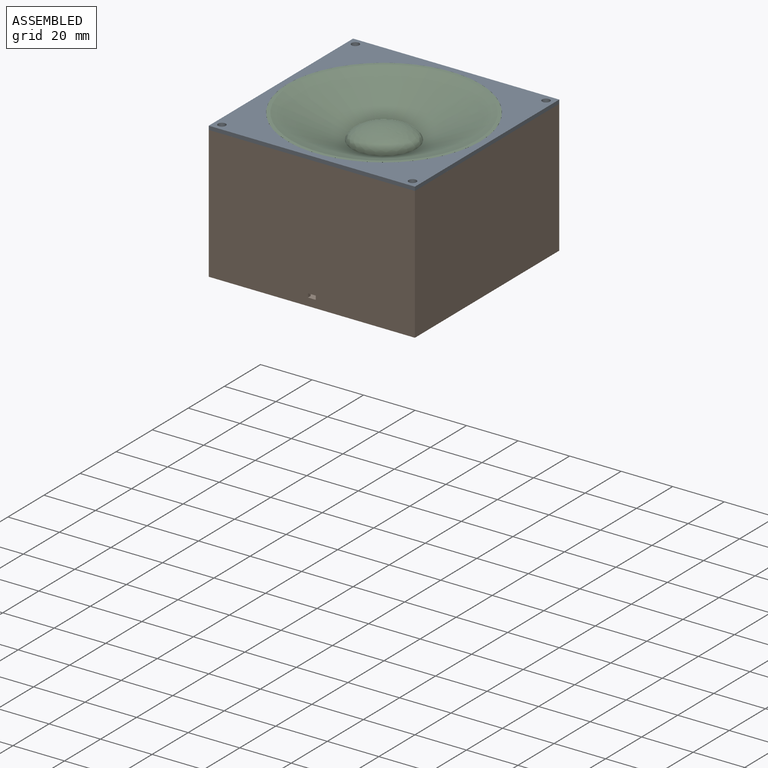
[diagram: assembled view]
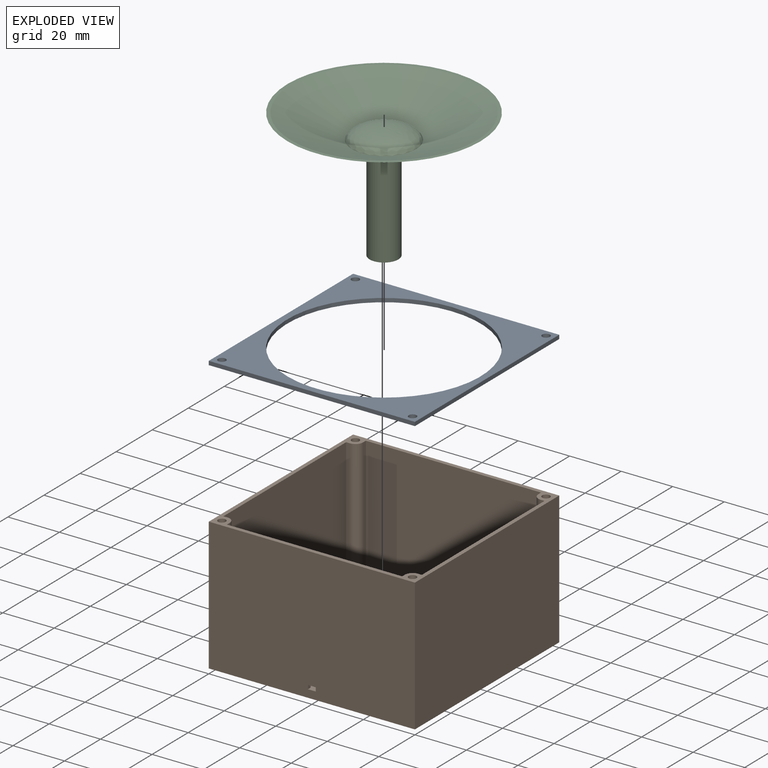
[diagram: exploded view]
GUIDED TOUR — MATED ASSEMBLY (Onshape document e8bc2521c4c116e8563849fe, AutoMate assembly e8bc2521c4c116e8563849fe_7b32bd0b9675d1406d4429d3_b6977e95659eb15da673e906_default)

This assembly has 3 components, labeled P0..P2 below (a component is one placed occurrence of a part; the same part can appear more than once), held together by 3 mates. A mate is a constraint between two components; its type names the relative motion it leaves free:
  FASTENED — locks the two components together rigidly (no relative motion),
  PLANAR — leaves sliding in the plane through the listed point (normal = the listed direction) and rotation about that normal free,
  SLIDER — leaves translation along the listed axis free.
Axis/direction vectors are unit vectors and 'through' points are millimeter coordinates, both in the assembly's world frame.

MATES
  1. FASTENED "Fastened 1": P0 <-> P1, direction (0.000, 0.000, -1.000) through (0.00, 0.00, 51.50) mm
  2. SLIDER "Slider 1": P2 <-> P0, axis (0.000, 0.000, 1.000) through (0.00, 0.00, 53.00) mm
  3. PLANAR "Planar 1": P2 <-> P0, direction (0.000, 0.000, 1.000) through (0.00, 0.00, 53.00) mm

ASSEMBLY ORDER
  1. P2 — the base component [order verified]
  2. P0 [order verified]
  3. P1 [order verified]
Order-tag legend:
  [order verified] — this step's position reverses a verified removal order: the component was checked to insert without passing through the ones already placed.

Of the 3 components, 1 carries the full construction recipe — the FeatureScript program that regenerates the part's solid from scratch; the rest are supplied as boundary geometry only.
Each toured component is shown spotlighted twice — in the assembled view, then in the exploded view, where a leader line traces a displaced component back to its assembled socket (saturated green if recipe-attached, orange if geometry-only; every other component desaturated gray) — followed by its recipe or geometry summary and the mates that hold it.
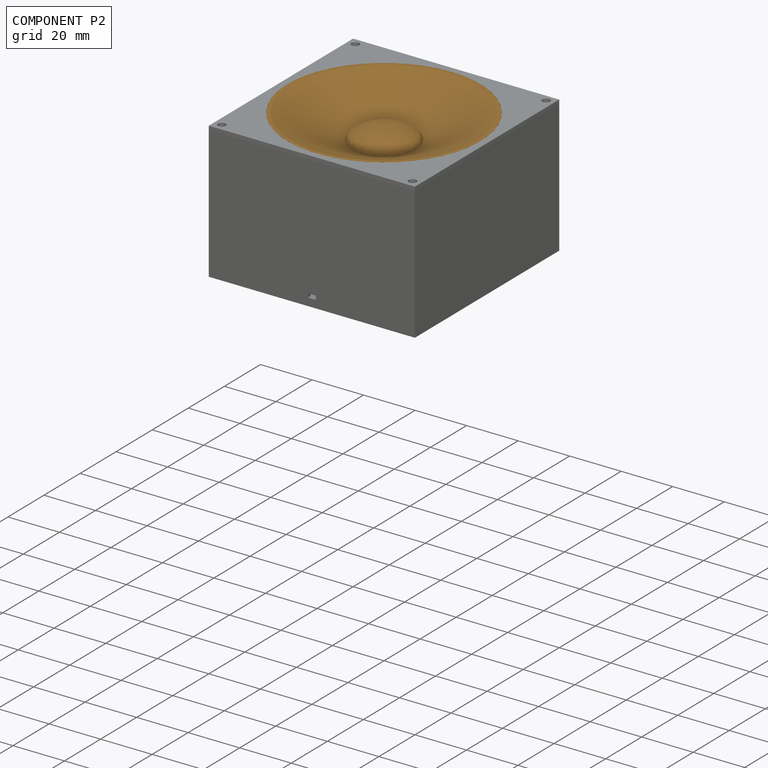
[diagram: component P2 — assembled]
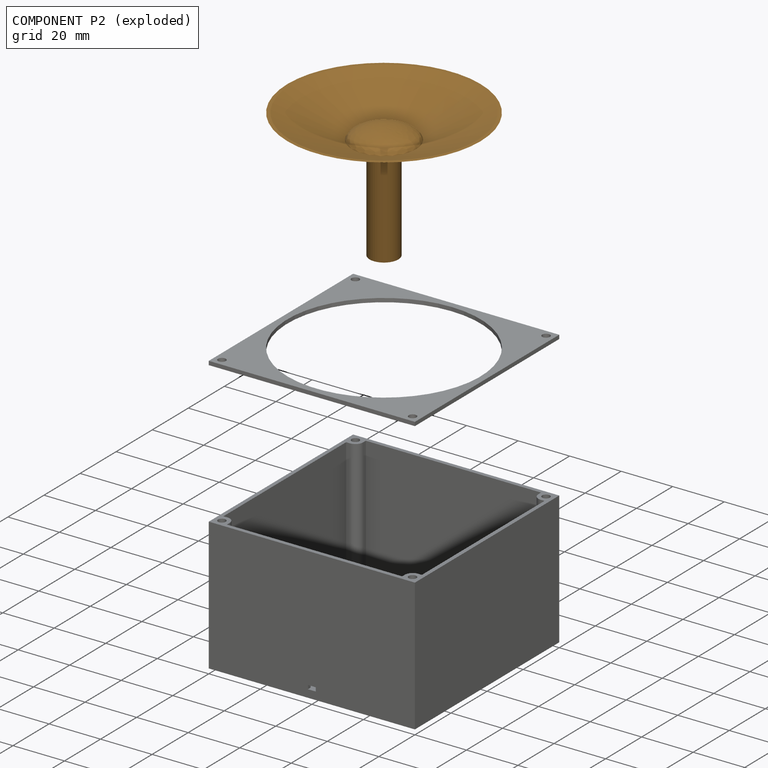
[diagram: component P2 — exploded]
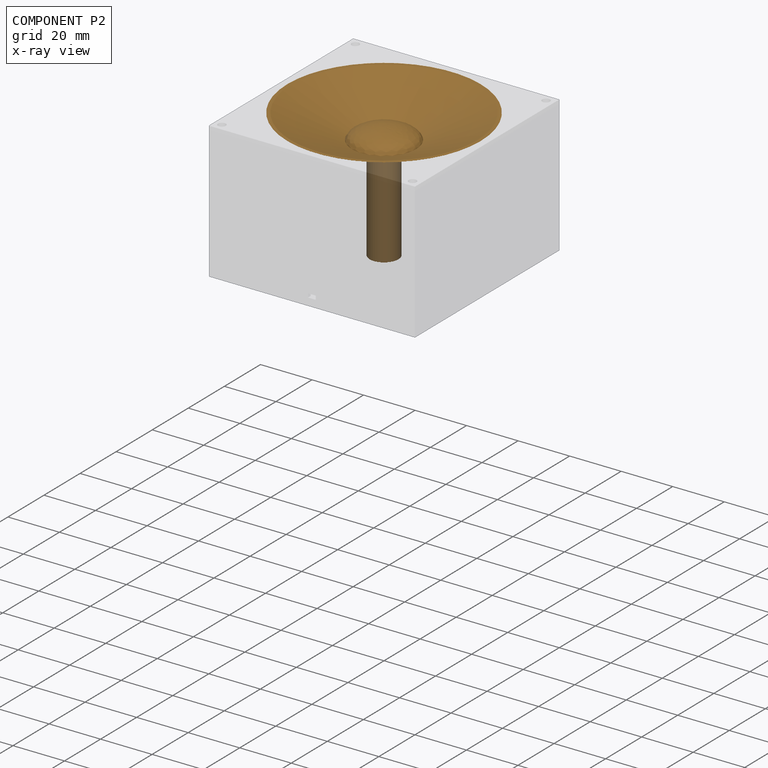
[diagram: component P2 — x-ray view]
COMPONENT P2 — geometry summary (no construction recipe available for this part):
  bounding box: 75.0 x 75.0 x 50.0 mm
  B-rep topology: 1 solid, 11 faces, 40 edges
  volume: 3078 mm^3 (1% of its bounding box)
  symmetry: revolution-symmetric about the z axis through its bounding-box center; mirror-symmetric across its x mid-plane, y mid-plane
Held by: SLIDER mate "Slider 1" to P0; PLANAR mate "Planar 1" to P0.
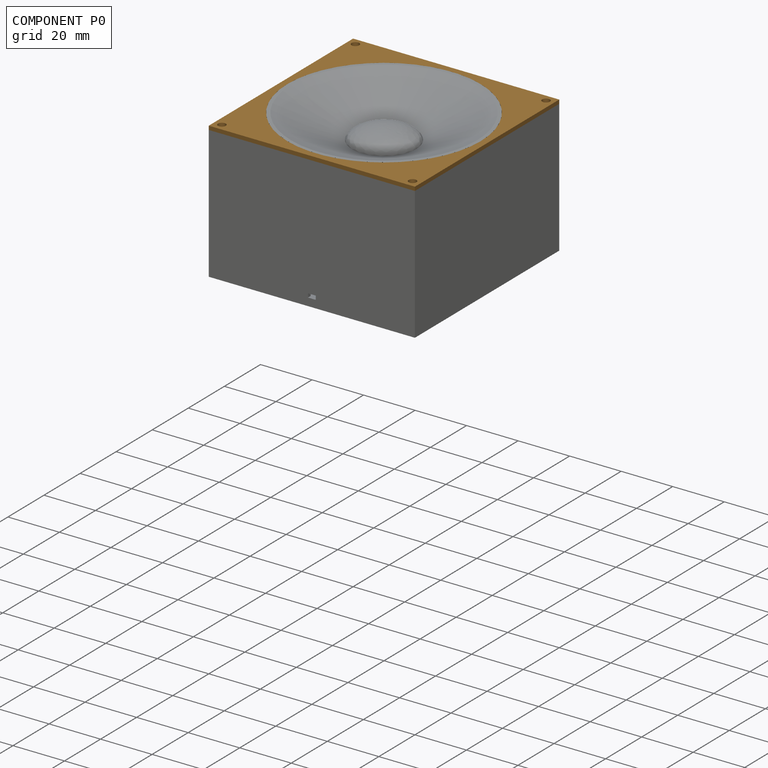
[diagram: component P0 — assembled]
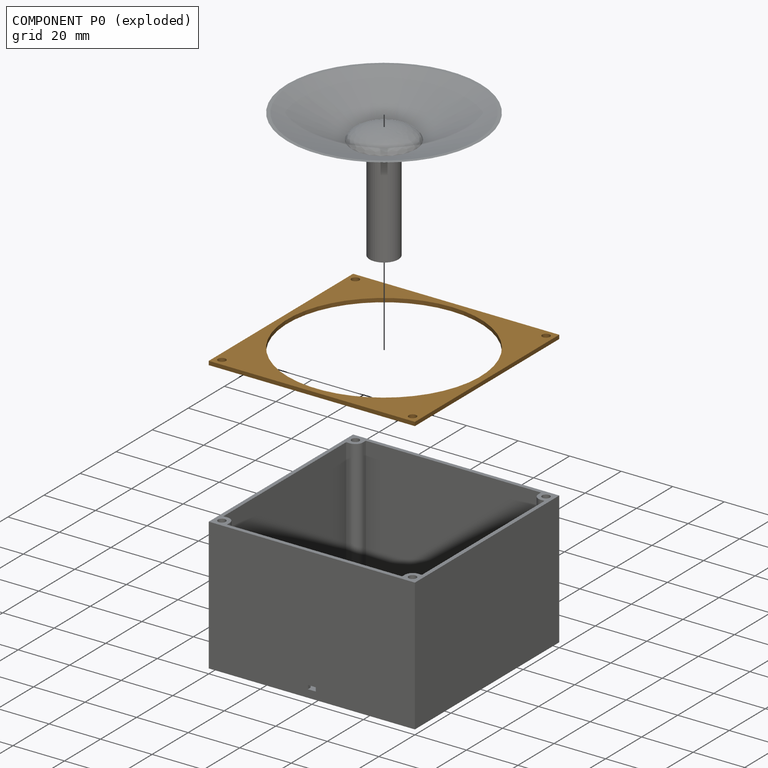
[diagram: component P0 — exploded]
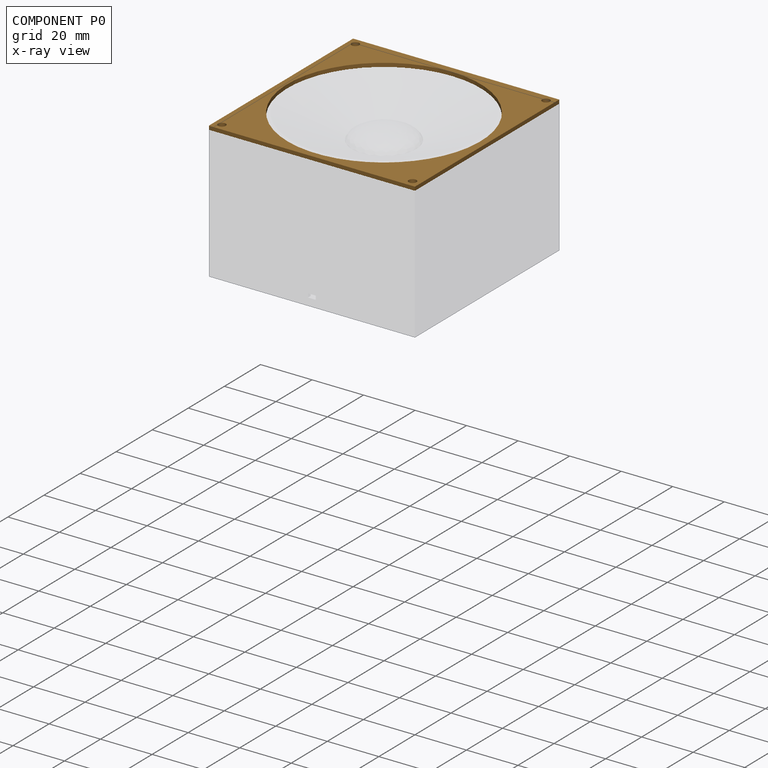
[diagram: component P0 — x-ray view]
COMPONENT P0 — geometry summary (no construction recipe available for this part):
  bounding box: 80.0 x 80.0 x 1.5 mm
  B-rep topology: 1 solid, 11 faces, 54 edges
  volume: 2931 mm^3 (31% of its bounding box)
  symmetry: 2-fold rotationally symmetric about the x axis; 2-fold rotationally symmetric about the y axis; 4-fold rotationally symmetric about the z axis; mirror-symmetric across its x mid-plane, y mid-plane, z mid-plane
Held by: FASTENED mate "Fastened 1" to P1; SLIDER mate "Slider 1" to P2; PLANAR mate "Planar 1" to P2.
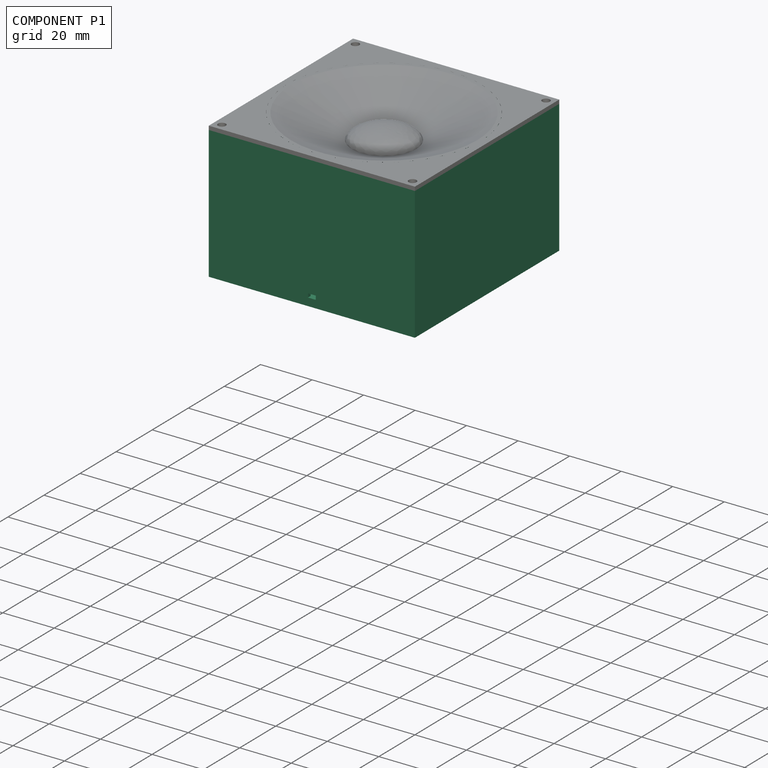
[diagram: component P1 — assembled]
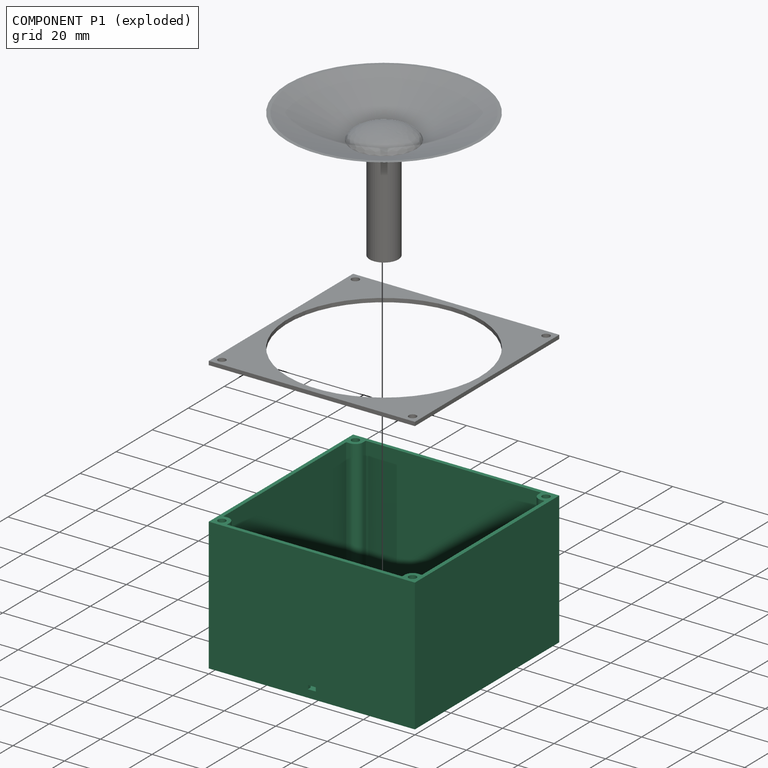
[diagram: component P1 — exploded]
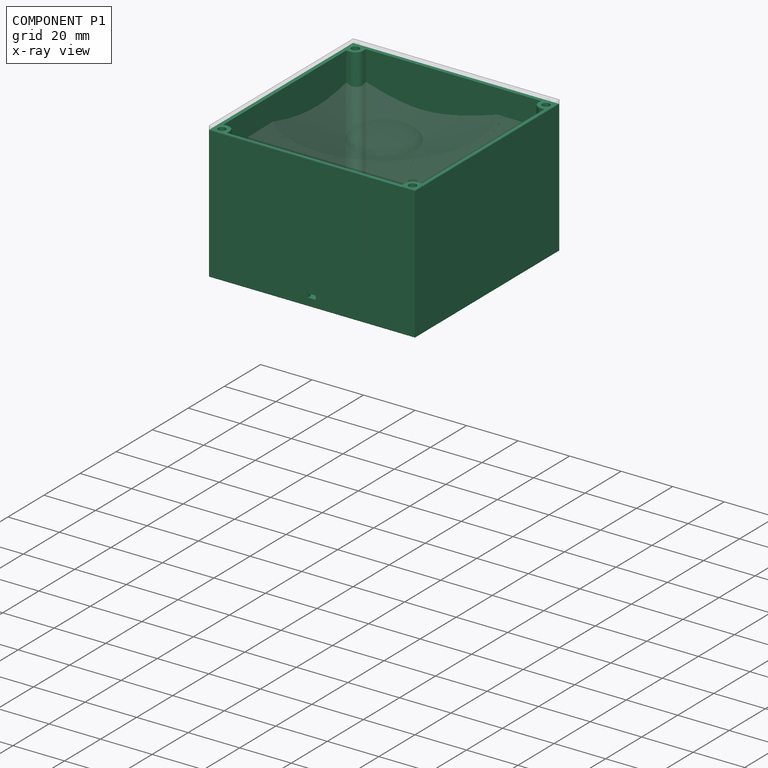
[diagram: component P1 — x-ray view]
COMPONENT P1 — recipe-attached (CADFS 00588034, mesh-verified: the recipe's output STEP matches this component's geometry to below the mesh-comparison resolution (tessellation chordal tolerance ~0.186 mm)).
Held by: FASTENED mate "Fastened 1" to P0.
Construction recipe (FeatureScript — the CAD program that rebuilds this solid; sketch coordinates are in the units given by the * unit suffixes, e.g. mm):

FeatureScript 1511;
import(path : "onshape/std/geometry.fs", version : "1511.0");
import(path : "onshape/std/common.fs", version : "1511.0");
const mm = millimeter;
const VERTEX = EntityType.VERTEX;
const EDGE = EntityType.EDGE;
const FACE = EntityType.FACE;
const BODY = EntityType.BODY;
function v(x, y){return vector(x, y);}
function OD(order){return orderDisambiguation(order);}
function OSD(set){return originalSetDisambiguation(set);}
function TD(topology){return topologyDisambiguation(topology);}
function TDD(query){return trueDependencyDisambiguation(query);}
function sQuery(a, b, c) {return sketchEntityQuery(a, b, c);}

annotation { "Feature Type Name" : "Feature", "Feature Type Description" : "" }
export const myFeature = defineFeature(function(context is Context, id is Id, definition is map)
    precondition{}
    {
        {
            var Q0;
            Q0=qCreatedBy(makeId("Top.planeOp"),FACE);
            var sketch = newSketch(context, id + "F0", { "sketchPlane" : qUnion([Q0])});
            skLineSegment(sketch, "E0.bottom", {"start": v(40, 40) * mm, "end": v(-40, 40) * mm});
            skLineSegment(sketch, "E0.top", {"start": v(40, -40) * mm, "end": v(-40, -40) * mm});
            skLineSegment(sketch, "E0.left", {"start": v(40, 40) * mm, "end": v(40, -40) * mm});
            skLineSegment(sketch, "E0.right", {"start": v(-40, 40) * mm, "end": v(-40, -40) * mm});
            skPoint(sketch, "E0.middle", {"position": v(0, 0) * mm});
            skSolve(sketch);
        }
        {
            var Q0;
            Q0=makeQuery(id+"F0.imprint","IMPRINT",FACE,{"disambiguationData":[TD([[makeQuery(id+"F0.imprint","IMPRINT",EDGE,{"derivedFrom":sQuery(id+"F0.wireOp",EDGE,"E0.bottom")}),1.0]])]});
            extrude(context, id + "F1", {"entities" : qUnion([Q0]), "depth" : 51.5 * mm, "offsetDistance" : 25 * mm});
        }
        {
            var Q0;
            Q0=makeQuery(id+"F1.opExtrude","CAP_FACE",FACE,{"disambiguationData":[OSD([sQuery(id+"F0.wireOp",EDGE,"E0.bottom"),sQuery(id+"F0.wireOp",EDGE,"E0.top"),sQuery(id+"F0.wireOp",EDGE,"E0.left"),sQuery(id+"F0.wireOp",EDGE,"E0.right")])],"isStart":false});
            shell(context, id + "F2", {"entities" : qUnion([Q0]), "thickness" : 1.5 * mm});
        }
        {
            var Q0;
            Q0=makeQuery(id+"F1.opExtrude","CAP_FACE",FACE,{"disambiguationData":[OSD([sQuery(id+"F0.wireOp",EDGE,"E0.bottom"),sQuery(id+"F0.wireOp",EDGE,"E0.top"),sQuery(id+"F0.wireOp",EDGE,"E0.left"),sQuery(id+"F0.wireOp",EDGE,"E0.right")])],"isStart":false});
            var sketch = newSketch(context, id + "F3", { "sketchPlane" : qUnion([Q0])});
            skCircle(sketch, "E1", {"center": v(-37, 37) * mm, "radius": 1.5 * mm});
            skArc(sketch, "E2.0", {"start": v(-37, 34) * mm, "mid": v(-34.88, 34.88) * mm, "end": v(-34, 37) * mm});
            skLineSegment(sketch, "E3.0", {"start": v(-38.5, 38.5) * mm, "end": v(-38.5, -38.5) * mm});
            skLineSegment(sketch, "E4.0", {"start": v(38.5, 38.5) * mm, "end": v(-38.5, 38.5) * mm});
            skLineSegment(sketch, "E5", {"start": v(-37, 34) * mm, "end": v(-38.5, 34) * mm});
            skLineSegment(sketch, "E6", {"start": v(-34, 37) * mm, "end": v(-34, 38.5) * mm});
            skLineSegment(sketch, "E7.0", {"start": v(38.5, 38.5) * mm, "end": v(38.5, -38.5) * mm});
            skLineSegment(sketch, "E8.0", {"start": v(38.5, -38.5) * mm, "end": v(-38.5, -38.5) * mm});
            skCircle(sketch, "E9", {"center": v(-37, -37) * mm, "radius": 1.5 * mm});
            skCircle(sketch, "E10", {"center": v(37, -37) * mm, "radius": 1.5 * mm});
            skCircle(sketch, "E11", {"center": v(37, 37) * mm, "radius": 1.5 * mm});
            skArc(sketch, "E12.0", {"start": v(34, 37) * mm, "mid": v(34.88, 34.88) * mm, "end": v(37, 34) * mm});
            skArc(sketch, "E13", {"start": v(-34, -37) * mm, "mid": v(-34.88, -34.88) * mm, "end": v(-37, -34) * mm});
            skArc(sketch, "E14", {"start": v(37, -34) * mm, "mid": v(34.88, -34.88) * mm, "end": v(34, -37) * mm});
            skLineSegment(sketch, "E15", {"start": v(37, 34) * mm, "end": v(38.5, 34) * mm});
            skLineSegment(sketch, "E16", {"start": v(34, 37) * mm, "end": v(34, 38.5) * mm});
            skLineSegment(sketch, "E17", {"start": v(37, -34) * mm, "end": v(38.5, -34) * mm});
            skLineSegment(sketch, "E18", {"start": v(34, -37) * mm, "end": v(34, -38.5) * mm});
            skLineSegment(sketch, "E19", {"start": v(-34, -37) * mm, "end": v(-34, -38.5) * mm});
            skLineSegment(sketch, "E20", {"start": v(-37, -34) * mm, "end": v(-38.5, -34) * mm});
            skSolve(sketch);
        }
        {
            var Q0;
            Q0=makeQuery(id+"F3.imprint","IMPRINT",FACE,{"disambiguationData":[TD([[makeQuery(id+"F3.imprint","IMPRINT",EDGE,{"derivedFrom":sQuery(id+"F3.wireOp",EDGE,"E2.0")}),1.0]])]});
            var Q1;
            {var subQ0=sQuery(id+"F3.wireOp",EDGE,"E3.0");var subQ1=sQuery(id+"F3.wireOp",EDGE,"E1");var subQ2=makeQuery(id+"F3.imprint","INTERSECT",VERTEX,{"derivedFrom":[subQ1,subQ0]});Q1=makeQuery(id+"F3.imprint","IMPRINT",FACE,{"disambiguationData":[TD([[makeQuery(id+"F3.imprint","IMPRINT",EDGE,{"disambiguationData":[TD([[subQ2,1.0]])],"derivedFrom":subQ1}),-1.0]])]});}
            var Q2;
            Q2=makeQuery(id+"F3.imprint","IMPRINT",FACE,{"disambiguationData":[TD([[makeQuery(id+"F3.imprint","IMPRINT",EDGE,{"derivedFrom":sQuery(id+"F3.wireOp",EDGE,"E13")}),1.0]])]});
            var Q3;
            {var subQ0=sQuery(id+"F3.wireOp",EDGE,"E8.0");var subQ1=sQuery(id+"F3.wireOp",EDGE,"E3.0");var subQ2=makeQuery(id+"F3.imprint","INTERSECT",VERTEX,{"derivedFrom":[subQ1,subQ0]});Q3=makeQuery(id+"F3.imprint","IMPRINT",FACE,{"disambiguationData":[TD([[makeQuery(id+"F3.imprint","IMPRINT",EDGE,{"disambiguationData":[TD([[subQ2,1.0]])],"derivedFrom":subQ1}),1.0]])]});}
            var Q4;
            Q4=makeQuery(id+"F3.imprint","IMPRINT",FACE,{"disambiguationData":[TD([[makeQuery(id+"F3.imprint","IMPRINT",EDGE,{"derivedFrom":sQuery(id+"F3.wireOp",EDGE,"E14")}),1.0]])]});
            var Q5;
            {var subQ0=sQuery(id+"F3.wireOp",EDGE,"E8.0");var subQ1=sQuery(id+"F3.wireOp",EDGE,"E7.0");var subQ2=makeQuery(id+"F3.imprint","INTERSECT",VERTEX,{"derivedFrom":[subQ1,subQ0]});Q5=makeQuery(id+"F3.imprint","IMPRINT",FACE,{"disambiguationData":[TD([[makeQuery(id+"F3.imprint","IMPRINT",EDGE,{"disambiguationData":[TD([[subQ2,1.0]])],"derivedFrom":subQ1}),-1.0]])]});}
            var Q6;
            Q6=makeQuery(id+"F3.imprint","IMPRINT",FACE,{"disambiguationData":[TD([[makeQuery(id+"F3.imprint","IMPRINT",EDGE,{"derivedFrom":sQuery(id+"F3.wireOp",EDGE,"E12.0")}),1.0]])]});
            var Q7;
            {var subQ0=sQuery(id+"F3.wireOp",EDGE,"E7.0");var subQ1=sQuery(id+"F3.wireOp",EDGE,"E4.0");var subQ2=makeQuery(id+"F3.imprint","INTERSECT",VERTEX,{"derivedFrom":[subQ1,subQ0]});Q7=makeQuery(id+"F3.imprint","IMPRINT",FACE,{"disambiguationData":[TD([[makeQuery(id+"F3.imprint","IMPRINT",EDGE,{"disambiguationData":[TD([[subQ2,-1.0]])],"derivedFrom":subQ1}),1.0]])]});}
            extrude(context, id + "F4", {"entities" : qUnion([Q0, Q1, Q2, Q3, Q4, Q5, Q6, Q7]), "operationType" : NewBodyOperationType.ADD, "endBound" : BoundingType.UP_TO_NEXT, "oppositeDirection" : true, "depth" : 25 * mm, "offsetDistance" : 25 * mm});
        }
        {
            var Q0;
            Q0=makeQuery(id+"F1.opExtrude","SWEPT_FACE",FACE,{"disambiguationData":[OSD([sQuery(id+"F0.wireOp",EDGE,"E0.top")])]});
            var sketch = newSketch(context, id + "F5", { "sketchPlane" : qUnion([Q0])});
            skLineSegment(sketch, "E21", {"start": v(0, 0) * mm, "end": v(0, 51.5) * mm, "construction": true});
            skLineSegment(sketch, "E22.bottom", {"start": v(1.5, 4.5) * mm, "end": v(-1.5, 4.5) * mm});
            skLineSegment(sketch, "E22.top", {"start": v(1.5, 3) * mm, "end": v(-1.5, 3) * mm});
            skLineSegment(sketch, "E22.left", {"start": v(1.5, 4.5) * mm, "end": v(1.5, 3) * mm});
            skLineSegment(sketch, "E22.right", {"start": v(-1.5, 4.5) * mm, "end": v(-1.5, 3) * mm});
            skPoint(sketch, "E22.middle", {"position": v(0, 3.75) * mm});
            skSolve(sketch);
        }
        {
            var Q0;
            Q0=makeQuery(id+"F5.imprint","IMPRINT",FACE,{"disambiguationData":[TD([[makeQuery(id+"F5.imprint","IMPRINT",EDGE,{"derivedFrom":sQuery(id+"F5.wireOp",EDGE,"E22.bottom")}),1.0]])]});
            extrude(context, id + "F6", {"entities" : qUnion([Q0]), "operationType" : NewBodyOperationType.REMOVE, "endBound" : BoundingType.UP_TO_NEXT, "oppositeDirection" : true, "depth" : 25 * mm, "offsetDistance" : 25 * mm});
        }
    });
PROVENANCE & LICENSES
Assembly (occurrences, transforms, mates, per-part STEP geometry): AutoMate dataset, Zenodo record 7776208, CC0.
Construction recipes: CADFS (HuggingFace VladPyatov/CADFS, CC-BY-4.0, layered over the ABC dataset), FeatureScript reconstruction programs keyed by ABC model id.
Join: ABC meta listings map ABC model id -> Onshape documentId; within a shared document, parts are matched by geometric signature (bounding-box dims + volume at 0.1% relative tolerance, exact B-rep face/solid counts).
Verification: 1 of this assembly's 3 components carries a recipe attachment, and every attachment is mesh-verified: the CADFS STEP and the AutoMate member STEP were compared as meshes in their shared local frame (symmetric sampled-point-to-mesh distance); worst across the 1 attachment: below the mesh-comparison resolution (tessellation chordal tolerance ~0.186 mm) on a 124 mm part.
Renders: orthographic iso camera (az 35 / el 25); the floor grid conveys scale (grid pitch printed in each image; no ruler). In the exploded view each component is displaced by its stored offset vector: the offsets alone carry the explosion direction (mate normal/axis signs are not orientation cues and do not encode it), and separation distances are assigned per mate-chain, not proportionally to assembly-order depth.
